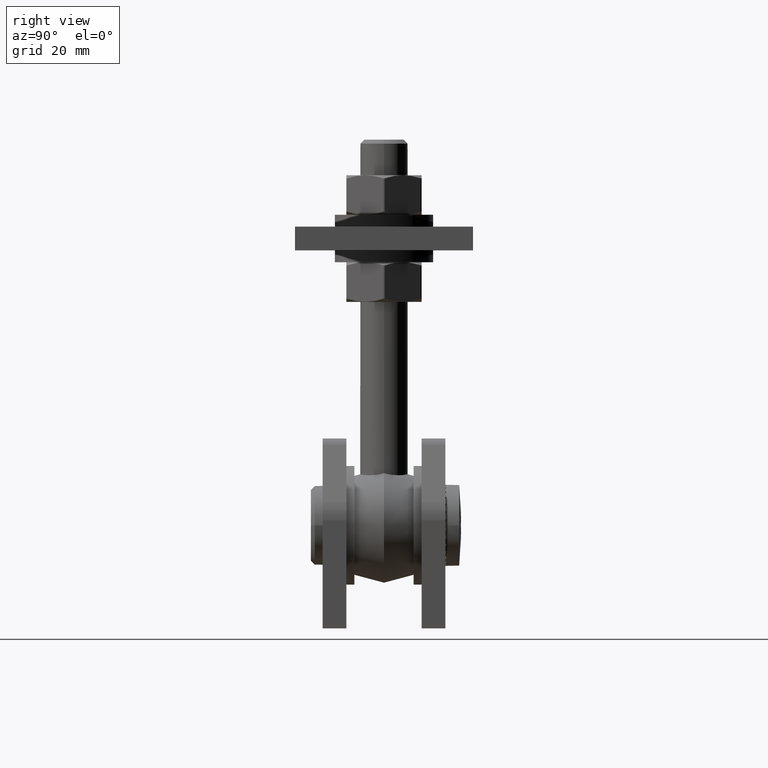
[diagram: clean part render]
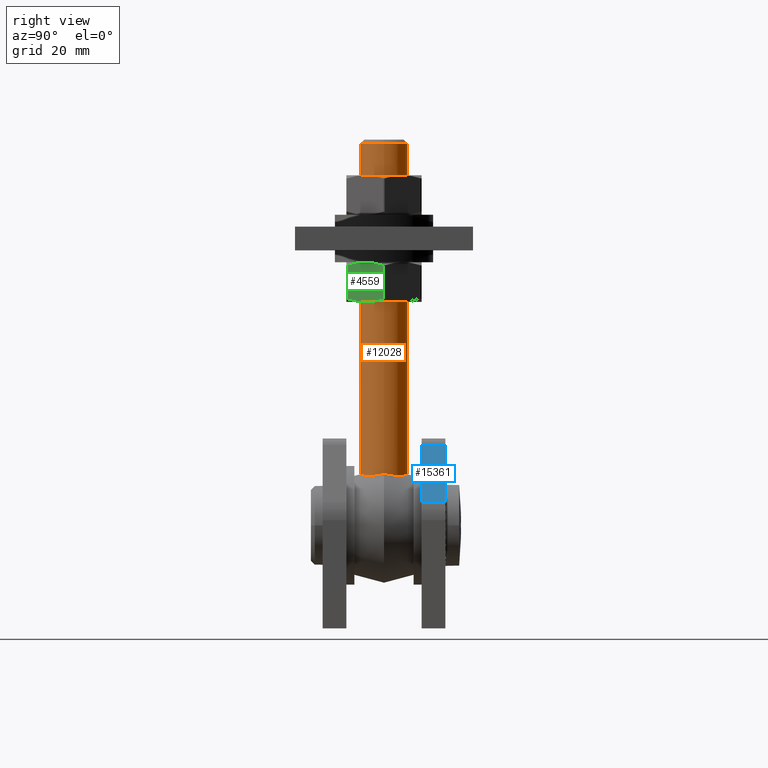
[diagram: same view with three faces highlighted in distinct colors, each labeled with its STEP entity id]
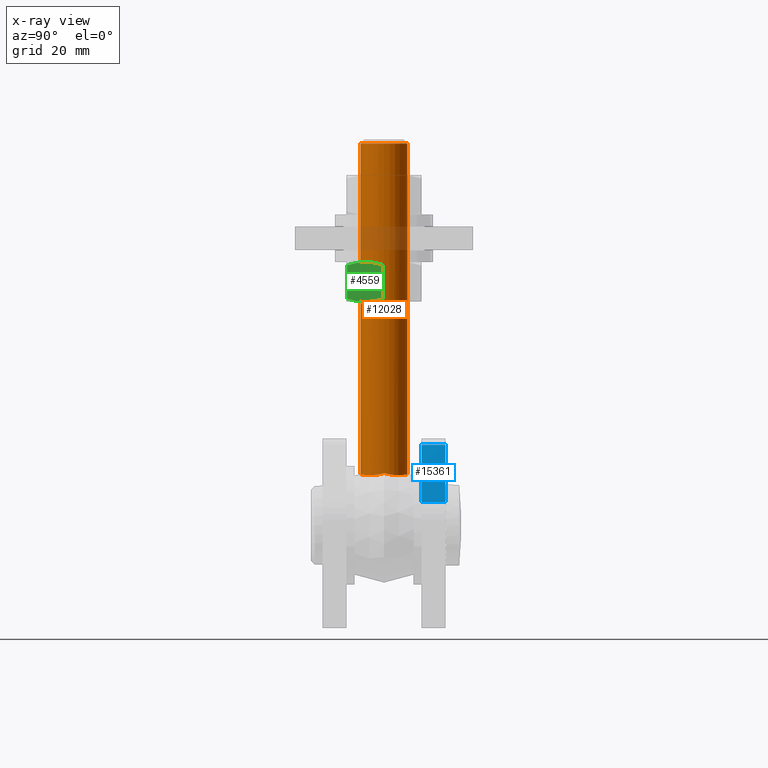
[diagram: x-ray of the same camera — body ghosted, the three highlighted faces saturated]
A machine part, right view with three faces highlighted in distinct colors.
The next image is the same camera in x-ray (body ghosted, the three faces saturated) — at least one of them is partly hidden behind the body in this view.
Their STEP definitions:

[orange] entity #12028 — the highlighted cylindrical surface (bore or boss wall) has radius 6 mm, axis along (0, 0, 1).
#327 = EDGE_LOOP ( 'NONE', ( #12473, #1795 ) ) ;
#779 = CARTESIAN_POINT ( 'NONE',  ( 6.000000000000002665, -0.3827541802042891961, 13.08826208833137095 ) ) ;
#852 = CARTESIAN_POINT ( 'NONE',  ( 0.7884352826538527648, -5.951249247761316141, 12.89040534083081013 ) ) ;
#1070 = CARTESIAN_POINT ( 'NONE',  ( -3.974814487299952237, -4.498876947203118704, 12.69334479588172648 ) ) ;
#1129 = CARTESIAN_POINT ( 'NONE',  ( 4.120193807994326995, 4.366084916060998466, 12.68396819487479910 ) ) ;
#1343 = VERTEX_POINT ( 'NONE', #9296 ) ;
#1795 = ORIENTED_EDGE ( 'NONE', *, *, #17881, .T. ) ;
#2503 = CARTESIAN_POINT ( 'NONE',  ( 5.397582578537481801, -2.627757068156821418, 12.70009026946609509 ) ) ;
#2577 = CARTESIAN_POINT ( 'NONE',  ( 5.110911634058252773, -3.149241585269620280, 12.66845421882813483 ) ) ;
#2915 = CARTESIAN_POINT ( 'NONE',  ( 3.017950531080384025, 5.200793096007117811, 12.76521835869265153 ) ) ;
#3001 = CARTESIAN_POINT ( 'NONE',  ( -3.980159266740700197, 4.507027438212402259, 12.69133912714833201 ) ) ;
#3070 = CARTESIAN_POINT ( 'NONE',  ( 1.561709717525819663, 5.806524821371747969, 12.86286706931056045 ) ) ;
#3141 = CARTESIAN_POINT ( 'NONE',  ( -2.123923953795481268, 5.614993702760308736, 12.82932117912651293 ) ) ;
#4165 = CARTESIAN_POINT ( 'NONE',  ( 3.980159266740700197, -4.507027438212403148, 12.69133912714833201 ) ) ;
#4307 = CARTESIAN_POINT ( 'NONE',  ( 1.558796039329187977, -5.797332074368805266, 12.86129482640286881 ) ) ;
#4382 = CARTESIAN_POINT ( 'NONE',  ( -1.561709717525822549, -5.806524821371746192, 12.86286706931056401 ) ) ;
#4572 = CARTESIAN_POINT ( 'NONE',  ( 1.945483584396603405, 5.689471076015696127, 12.84131577475108266 ) ) ;
#4645 = CARTESIAN_POINT ( 'NONE',  ( -1.368148691843816378, 5.845232313399372437, 12.87018697695522107 ) ) ;
#4716 = CARTESIAN_POINT ( 'NONE',  ( -5.702108158310748465, 1.907503466345394472, 12.77722720559683367 ) ) ;
#5298 = VERTEX_POINT ( 'NONE', #11848 ) ;
#5909 = CARTESIAN_POINT ( 'NONE',  ( 4.397321802568406213, 4.086839301262862989, 12.66942196451927494 ) ) ;
#5979 = CARTESIAN_POINT ( 'NONE',  ( 5.703965992027974607, 1.902295096582114153, 12.77792131987994217 ) ) ;
#6120 = CARTESIAN_POINT ( 'NONE',  ( 0.000000000000000000, 0.000000000000000000, 96.50000000000001421 ) ) ;
#6265 = DIRECTION ( 'NONE',  ( 1.000000000000000000, -1.643764948137485630E-48, 0.000000000000000000 ) ) ;
#6470 = CARTESIAN_POINT ( 'NONE',  ( -0.7884352826538547632, 5.951249247761316141, 12.89040534083081013 ) ) ;
#7325 = CARTESIAN_POINT ( 'NONE',  ( -5.703965992027976384, -1.902295096582111045, 12.77792131987994395 ) ) ;
#7599 = CARTESIAN_POINT ( 'NONE',  ( 6.000000000000000888, 1.848804821563645678E-15, 13.20037878244408347 ) ) ;
#7617 = CARTESIAN_POINT ( 'NONE',  ( -4.120193807994330548, -4.366084916060997578, 12.68396819487480265 ) ) ;
#7764 = CARTESIAN_POINT ( 'NONE',  ( -3.017950531080386689, -5.200793096007111593, 12.76521835869264798 ) ) ;
#7887 = CARTESIAN_POINT ( 'NONE',  ( 4.529070528400186646, 3.940385864936943427, 12.66425028738498426 ) ) ;
#8023 = CARTESIAN_POINT ( 'NONE',  ( -3.670653031151716483, 4.762439278341422444, 12.71469131393960872 ) ) ;
#8089 = CARTESIAN_POINT ( 'NONE',  ( -0.3954047058956922100, 5.990213094913122482, 12.89804642967532899 ) ) ;
#8954 = CARTESIAN_POINT ( 'NONE',  ( -6.000000000000002665, -0.3825724127659430596, 13.08831533181070839 ) ) ;
#9296 = CARTESIAN_POINT ( 'NONE',  ( 6.000000000000000888, 1.848804821563645678E-15, 13.20037878244408347 ) ) ;
#9384 = CARTESIAN_POINT ( 'NONE',  ( 2.672294666691055642, -5.386619551123978944, 12.79250781864620556 ) ) ;
#9461 = CARTESIAN_POINT ( 'NONE',  ( 5.480498776710037490, -2.449956099459378756, 12.71606002740366748 ) ) ;
#9532 = CARTESIAN_POINT ( 'NONE',  ( -5.224816275192858406, -2.976287832310414050, 12.67298624729080281 ) ) ;
#9661 = CARTESIAN_POINT ( 'NONE',  ( -5.814281017698808895, 1.531820667897725752, 12.83612793211212555 ) ) ;
#9729 = CARTESIAN_POINT ( 'NONE',  ( -4.534910008733427311, 3.948361094189677623, 12.66217952925253520 ) ) ;
#9827 = AXIS2_PLACEMENT_3D ( 'NONE', #6120, #12899, #12823 ) ;
#9882 = CARTESIAN_POINT ( 'NONE',  ( -5.397582578537477360, 2.627757068156823195, 12.70009026946609687 ) ) ;
#9961 = CARTESIAN_POINT ( 'NONE',  ( 0.3993178471957865017, 5.999826929037316070, 12.89996565414237573 ) ) ;
#10278 = EDGE_LOOP ( 'NONE', ( #15978 ) ) ;
#10670 = CARTESIAN_POINT ( 'NONE',  ( -5.963749772425885887, -0.7632868761129883994, 12.99321238859780614 ) ) ;
#10969 = CARTESIAN_POINT ( 'NONE',  ( 5.963733568600349422, -0.7656502035007102247, 12.99252877293548281 ) ) ;
#11086 = CARTESIAN_POINT ( 'NONE',  ( 5.224816275192856629, 2.976287832310417159, 12.67298624729080636 ) ) ;
#11103 = CARTESIAN_POINT ( 'NONE',  ( 3.017917842539742157, -5.200643561202084264, 12.76522316858578243 ) ) ;
#11175 = CARTESIAN_POINT ( 'NONE',  ( -3.510151101034216570, -4.870103469823735765, 12.72711780840207751 ) ) ;
#11233 = VERTEX_POINT ( 'NONE', #11933 ) ;
#11371 = CARTESIAN_POINT ( 'NONE',  ( 3.510151101034213461, 4.870103469823738429, 12.72711780840207574 ) ) ;
#11511 = CARTESIAN_POINT ( 'NONE',  ( -2.672294666691058751, 5.386619551123978944, 12.79250781864620912 ) ) ;
#11654 = CARTESIAN_POINT ( 'NONE',  ( -5.110911634058251884, 3.149241585269621169, 12.66845421882813305 ) ) ;
#11848 = CARTESIAN_POINT ( 'NONE',  ( 6.000000000000000888, -9.862589688824914388E-48, 96.50000000000001421 ) ) ;
#11933 = CARTESIAN_POINT ( 'NONE',  ( -6.000000000000000888, 1.734723475976807094E-15, 13.20037878244408347 ) ) ;
#12028 = ADVANCED_FACE ( 'NONE', ( #14936, #19734 ), #21324, .T. ) ;
#12473 = ORIENTED_EDGE ( 'NONE', *, *, #16956, .T. ) ;
#12685 = CARTESIAN_POINT ( 'NONE',  ( -4.529070528400189311, -3.940385864936939875, 12.66425028738498781 ) ) ;
#12823 = DIRECTION ( 'NONE',  ( 1.000000000000000000, -1.643764948137485630E-48, 0.000000000000000000 ) ) ;
#12899 = DIRECTION ( 'NONE',  ( -0.000000000000000000, -0.000000000000000000, -1.000000000000000000 ) ) ;
#12976 = CARTESIAN_POINT ( 'NONE',  ( 1.368148691843815712, -5.845232313399371549, 12.87018697695522285 ) ) ;
#13028 = CARTESIAN_POINT ( 'NONE',  ( 3.974814487299948684, 4.498876947203118704, 12.69334479588172648 ) ) ;
#14306 = CARTESIAN_POINT ( 'NONE',  ( -0.3993178471957874454, -5.999826929037315182, 12.89996565414237040 ) ) ;
#14360 = CARTESIAN_POINT ( 'NONE',  ( 3.670203712590957235, 4.750647187763872736, 12.71488632193073265 ) ) ;
#14381 = CARTESIAN_POINT ( 'NONE',  ( 6.000000000000000888, 1.848804821563645678E-15, 13.20037878244408347 ) ) ;
#14435 = CARTESIAN_POINT ( 'NONE',  ( 5.999999999999999112, 0.3825724127659466123, 13.08831533181070128 ) ) ;
#14457 = CARTESIAN_POINT ( 'NONE',  ( 5.213095216582326330, -2.977019174312771632, 12.67627985951546954 ) ) ;
#14510 = CARTESIAN_POINT ( 'NONE',  ( 4.778744625997416229, 3.633554790466055451, 12.65965581720103472 ) ) ;
#14531 = CARTESIAN_POINT ( 'NONE',  ( -1.945483584396608068, -5.689471076015698792, 12.84131577475108799 ) ) ;
#14604 = CARTESIAN_POINT ( 'NONE',  ( -4.897246985225756077, -3.472206871467635292, 12.66027516396318298 ) ) ;
#14804 = CARTESIAN_POINT ( 'NONE',  ( -6.000000000000000888, 1.734723475976807094E-15, 13.20037878244408347 ) ) ;
#14871 = CARTESIAN_POINT ( 'NONE',  ( -5.213095216582325442, 2.977019174312775629, 12.67627985951547132 ) ) ;
#14936 = FACE_OUTER_BOUND ( 'NONE', #10278, .T. ) ;
#14950 = CARTESIAN_POINT ( 'NONE',  ( -1.558796039329189309, 5.797332074368800825, 12.86129482640286170 ) ) ;
#15812 = CARTESIAN_POINT ( 'NONE',  ( -5.816834076654808783, -1.520973217391921928, 12.83814455263628318 ) ) ;
#15978 = ORIENTED_EDGE ( 'NONE', *, *, #19827, .T. ) ;
#16033 = CARTESIAN_POINT ( 'NONE',  ( 5.702108158310751129, -1.907503466345390697, 12.77722720559683545 ) ) ;
#16108 = CARTESIAN_POINT ( 'NONE',  ( 4.534910008733425535, -3.948361094189674514, 12.66217952925253343 ) ) ;
#16175 = CARTESIAN_POINT ( 'NONE',  ( 3.670653031151716927, -4.762439278341425108, 12.71469131393961405 ) ) ;
#16331 = CARTESIAN_POINT ( 'NONE',  ( 0.1957453901150722209, -6.000085684606625058, 12.90001700407307084 ) ) ;
#16334 = B_SPLINE_CURVE_WITH_KNOTS ( 'NONE', 3,
 ( #21086, #8954, #10670, #15812, #7325, #19465, #9532, #14604, #17981, #12685, #17831, #7617, #1070, #17907, #11175, #7764, #17759, #14531, #4382, #21234, #14306, #16331, #19542, #852, #21463, #12976, #4307, #21159, #19612, #9384, #11103, #16175, #4165, #16108, #19684, #2577, #14457, #2503, #9461, #16033, #21382, #10969, #779, #14381 ),
 .UNSPECIFIED., .F., .F.,
 ( 4, 2, 2, 2, 2, 2, 2, 2, 2, 2, 2, 2, 2, 2, 2, 2, 2, 2, 2, 2, 2, 4 ),
 ( 2.055989513974194360E-07, 0.001180053930874007785, 0.002359902262796617894, 0.003539750594719228653, 0.004129674760680534032, 0.004719598926641838110, 0.005309523092603140454, 0.005899447258564441063, 0.007079295590487041413, 0.008259143922409641764, 0.009438992254332241247, 0.01002891642029354359, 0.01061884058625484420, 0.01120876475221614307, 0.01179868891817744542, 0.01297853725010004490, 0.01415838558202264438, 0.01533823391394524560, 0.01592815807990654448, 0.01651808224586784682, 0.01769793057779044457, 0.01887777890971304232 ),
 .UNSPECIFIED. ) ;
#16385 = CARTESIAN_POINT ( 'NONE',  ( 5.407645434155393893, 2.628940001436006924, 12.69577194405658638 ) ) ;
#16956 = EDGE_CURVE ( 'NONE', #1343, #11233, #17908, .T. ) ;
#17759 = CARTESIAN_POINT ( 'NONE',  ( -2.672222296499891403, -5.386484521472672427, 12.79249709363265630 ) ) ;
#17831 = CARTESIAN_POINT ( 'NONE',  ( -4.397321802568409765, -4.086839301262861213, 12.66942196451927671 ) ) ;
#17881 = EDGE_CURVE ( 'NONE', #11233, #1343, #16334, .T. ) ;
#17907 = CARTESIAN_POINT ( 'NONE',  ( -3.670203712590958123, -4.750647187763870960, 12.71488632193072910 ) ) ;
#17908 = B_SPLINE_CURVE_WITH_KNOTS ( 'NONE', 3,
 ( #7599, #14435, #21285, #21438, #5979, #16385, #11086, #19662, #14510, #7887, #5909, #1129, #13028, #14360, #11371, #2915, #19872, #4572, #3070, #21587, #9961, #21803, #8089, #6470, #20097, #4645, #14950, #20168, #3141, #11511, #21878, #8023, #3001, #9729, #21667, #11654, #14871, #9882, #18469, #4716, #9661, #18180, #21732, #14804 ),
 .UNSPECIFIED., .F., .F.,
 ( 4, 2, 2, 2, 2, 2, 2, 2, 2, 2, 2, 2, 2, 2, 2, 2, 2, 2, 2, 2, 2, 4 ),
 ( 2.055989513968359891E-07, 0.001180053930874000413, 0.002359902262796604016, 0.003539750594719206968, 0.004129674760680508878, 0.004719598926641811222, 0.005309523092603110964, 0.005899447258564412440, 0.007079295590487012790, 0.008259143922409615743, 0.009438992254332216961, 0.01002891642029351583, 0.01061884058625481644, 0.01120876475221612052, 0.01179868891817742287, 0.01297853725010002408, 0.01415838558202262704, 0.01533823391394523172, 0.01592815807990653407, 0.01651808224586783641, 0.01769793057779044110, 0.01887777890971304232 ),
 .UNSPECIFIED. ) ;
#17981 = CARTESIAN_POINT ( 'NONE',  ( -4.778744625997418005, -3.633554790466051010, 12.65965581720103295 ) ) ;
#18180 = CARTESIAN_POINT ( 'NONE',  ( -5.963733568600349422, 0.7656502035007147766, 12.99252877293548281 ) ) ;
#18469 = CARTESIAN_POINT ( 'NONE',  ( -5.480498776710037490, 2.449956099459380976, 12.71606002740365859 ) ) ;
#19465 = CARTESIAN_POINT ( 'NONE',  ( -5.407645434155394781, -2.628940001436003371, 12.69577194405658993 ) ) ;
#19542 = CARTESIAN_POINT ( 'NONE',  ( 0.3954047058956901006, -5.990213094913119818, 12.89804642967532899 ) ) ;
#19600 = CIRCLE ( 'NONE', #9827, 6.000000000000000888 ) ;
#19612 = CARTESIAN_POINT ( 'NONE',  ( 2.123923953795479491, -5.614993702760309624, 12.82932117912651293 ) ) ;
#19662 = CARTESIAN_POINT ( 'NONE',  ( 4.897246985225751637, 3.472206871467637956, 12.66027516396319008 ) ) ;
#19669 = CARTESIAN_POINT ( 'NONE',  ( 0.000000000000000000, 0.000000000000000000, -14.50200000000000067 ) ) ;
#19684 = CARTESIAN_POINT ( 'NONE',  ( 4.783076354395745078, -3.644000790641277909, 12.65607650935470652 ) ) ;
#19734 = FACE_OUTER_BOUND ( 'NONE', #327, .T. ) ;
#19827 = EDGE_CURVE ( 'NONE', #5298, #5298, #19600, .T. ) ;
#19872 = CARTESIAN_POINT ( 'NONE',  ( 2.672222296499887406, 5.386484521472674203, 12.79249709363265275 ) ) ;
#19891 = AXIS2_PLACEMENT_3D ( 'NONE', #19669, #19953, #6265 ) ;
#19953 = DIRECTION ( 'NONE',  ( 0.000000000000000000, 0.000000000000000000, 1.000000000000000000 ) ) ;
#20097 = CARTESIAN_POINT ( 'NONE',  ( -0.9829682933150273305, 5.922190893152589730, 12.88474171911507149 ) ) ;
#20168 = CARTESIAN_POINT ( 'NONE',  ( -1.936177580107270257, 5.682439674208922042, 12.84089857158601866 ) ) ;
#21086 = CARTESIAN_POINT ( 'NONE',  ( -6.000000000000000888, 1.734723475976807094E-15, 13.20037878244408347 ) ) ;
#21159 = CARTESIAN_POINT ( 'NONE',  ( 1.936177580107269591, -5.682439674208924707, 12.84089857158602399 ) ) ;
#21234 = CARTESIAN_POINT ( 'NONE',  ( -0.7904110285022537541, -5.960697790447253119, 12.89202369021798233 ) ) ;
#21285 = CARTESIAN_POINT ( 'NONE',  ( 5.963749772425886775, 0.7632868761129916191, 12.99321238859780436 ) ) ;
#21324 = CYLINDRICAL_SURFACE ( 'NONE', #19891, 6.000000000000000888 ) ;
#21382 = CARTESIAN_POINT ( 'NONE',  ( 5.814281017698811560, -1.531820667897720645, 12.83612793211212733 ) ) ;
#21438 = CARTESIAN_POINT ( 'NONE',  ( 5.816834076654808783, 1.520973217391925481, 12.83814455263628318 ) ) ;
#21463 = CARTESIAN_POINT ( 'NONE',  ( 0.9829682933150251101, -5.922190893152589730, 12.88474171911507149 ) ) ;
#21587 = CARTESIAN_POINT ( 'NONE',  ( 0.7904110285022500904, 5.960697790447256672, 12.89202369021798589 ) ) ;
#21667 = CARTESIAN_POINT ( 'NONE',  ( -4.783076354395746854, 3.644000790641277021, 12.65607650935471007 ) ) ;
#21732 = CARTESIAN_POINT ( 'NONE',  ( -6.000000000000000888, 0.3827541802042939700, 13.08826208833137095 ) ) ;
#21803 = CARTESIAN_POINT ( 'NONE',  ( -0.1957453901150751907, 6.000085684606624170, 12.90001700407306906 ) ) ;
#21878 = CARTESIAN_POINT ( 'NONE',  ( -3.017917842539743045, 5.200643561202086929, 12.76522316858578598 ) ) ;

[blue] entity #15361 — the highlighted planar face has unit normal (-0.8888, 0, -0.4583).
#141 = LINE ( 'NONE', #9087, #18010 ) ;
#828 = ORIENTED_EDGE ( 'NONE', *, *, #7630, .T. ) ;
#937 = ORIENTED_EDGE ( 'NONE', *, *, #3558, .T. ) ;
#1157 = CARTESIAN_POINT ( 'NONE',  ( 13.93143460344952622, 3.000000000000000888, 22.37481871733221084 ) ) ;
#1564 = ORIENTED_EDGE ( 'NONE', *, *, #18745, .F. ) ;
#2221 = DIRECTION ( 'NONE',  ( -0.4582729057774030945, 0.000000000000000000, 0.8888115344831746256 ) ) ;
#3558 = EDGE_CURVE ( 'NONE', #8816, #18128, #12231, .T. ) ;
#3817 = DIRECTION ( 'NONE',  ( 0.4582729057774031500, -0.000000000000000000, -0.8888115344831746256 ) ) ;
#4210 = VECTOR ( 'NONE', #17604, 1000.000000000000114 ) ;
#6103 = VECTOR ( 'NONE', #3817, 1000.000000000000114 ) ;
#7630 = EDGE_CURVE ( 'NONE', #9596, #8816, #141, .T. ) ;
#7738 = ORIENTED_EDGE ( 'NONE', *, *, #18657, .F. ) ;
#8816 = VERTEX_POINT ( 'NONE', #20548 ) ;
#9087 = CARTESIAN_POINT ( 'NONE',  ( 13.93143460344952622, 3.000000000000000888, 22.37481871733221084 ) ) ;
#9211 = LINE ( 'NONE', #17384, #4210 ) ;
#9453 = DIRECTION ( 'NONE',  ( -0.000000000000000000, -1.000000000000000000, -0.000000000000000000 ) ) ;
#9596 = VERTEX_POINT ( 'NONE', #1157 ) ;
#11034 = CARTESIAN_POINT ( 'NONE',  ( 21.38811534483174626, 3.000000000000000888, 7.912729057774021690 ) ) ;
#11496 = FACE_OUTER_BOUND ( 'NONE', #22104, .T. ) ;
#11790 = AXIS2_PLACEMENT_3D ( 'NONE', #20420, #12243, #2221 ) ;
#12231 = LINE ( 'NONE', #19192, #6103 ) ;
#12243 = DIRECTION ( 'NONE',  ( -0.8888115344831746256, 0.000000000000000000, -0.4582729057774030945 ) ) ;
#14762 = CARTESIAN_POINT ( 'NONE',  ( 21.38811534483174626, 3.000000000000000888, 7.912729057774021690 ) ) ;
#15284 = PLANE ( 'NONE',  #11790 ) ;
#15361 = ADVANCED_FACE ( 'NONE', ( #11496 ), #15284, .F. ) ;
#16517 = VERTEX_POINT ( 'NONE', #14762 ) ;
#17384 = CARTESIAN_POINT ( 'NONE',  ( 21.38811534483174626, 3.000000000000000888, 7.912729057774021690 ) ) ;
#17604 = DIRECTION ( 'NONE',  ( 0.4582729057774031500, -0.000000000000000000, -0.8888115344831746256 ) ) ;
#18010 = VECTOR ( 'NONE', #19238, 1000.000000000000000 ) ;
#18128 = VERTEX_POINT ( 'NONE', #18979 ) ;
#18657 = EDGE_CURVE ( 'NONE', #9596, #16517, #9211, .T. ) ;
#18745 = EDGE_CURVE ( 'NONE', #16517, #18128, #20143, .T. ) ;
#18979 = CARTESIAN_POINT ( 'NONE',  ( 21.38811534483174626, -3.000000000000000888, 7.912729057774021690 ) ) ;
#19192 = CARTESIAN_POINT ( 'NONE',  ( 21.38811534483174626, -3.000000000000000888, 7.912729057774021690 ) ) ;
#19238 = DIRECTION ( 'NONE',  ( -0.000000000000000000, -1.000000000000000000, -0.000000000000000000 ) ) ;
#20143 = LINE ( 'NONE', #11034, #20684 ) ;
#20420 = CARTESIAN_POINT ( 'NONE',  ( 21.38811534483174626, 3.000000000000000888, 7.912729057774021690 ) ) ;
#20548 = CARTESIAN_POINT ( 'NONE',  ( 13.93143460344952622, -3.000000000000000888, 22.37481871733221084 ) ) ;
#20684 = VECTOR ( 'NONE', #9453, 1000.000000000000000 ) ;
#22104 = EDGE_LOOP ( 'NONE', ( #937, #1564, #7738, #828 ) ) ;

[green] entity #4559 — the highlighted planar face has unit normal (-0.866, 0.5, -0).
#132 = CARTESIAN_POINT ( 'NONE',  ( 6.481161992788997850, -4.661040693212955333, -7.774298136405125348 ) ) ;
#614 = CARTESIAN_POINT ( 'NONE',  ( 10.40005022359209619, -4.468805358379086989, -0.9865846114703982206 ) ) ;
#1182 = EDGE_CURVE ( 'NONE', #21156, #9264, #18981, .T. ) ;
#1542 = ORIENTED_EDGE ( 'NONE', *, *, #1182, .T. ) ;
#1764 = CARTESIAN_POINT ( 'NONE',  ( 5.629165124598358716, 4.233161112797506398, -9.250000000000722977 ) ) ;
#1853 = ORIENTED_EDGE ( 'NONE', *, *, #7428, .T. ) ;
#1918 = CARTESIAN_POINT ( 'NONE',  ( 6.054432448312299542, 4.468805358379099424, -8.513415388529494976 ) ) ;
#2081 = EDGE_LOOP ( 'NONE', ( #2742, #11644, #10925, #19254, #1542, #1853 ) ) ;
#2142 = FACE_OUTER_BOUND ( 'NONE', #2081, .T. ) ;
#2511 = CARTESIAN_POINT ( 'NONE',  ( 10.96965511460286358, 5.000000000000060396, -1.522173556453689203E-15 ) ) ;
#2731 = DIRECTION ( 'NONE',  ( -0.8660254037844363761, 0.000000000000000000, 0.5000000000000041078 ) ) ;
#2742 = ORIENTED_EDGE ( 'NONE', *, *, #3354, .T. ) ;
#2831 = CARTESIAN_POINT ( 'NONE',  ( 10.40106991011709248, 4.468240341392056614, -0.9848184626013087861 ) ) ;
#3064 = VERTEX_POINT ( 'NONE', #12060 ) ;
#3090 = EDGE_CURVE ( 'NONE', #6077, #21156, #19938, .T. ) ;
#3354 = EDGE_CURVE ( 'NONE', #9251, #3064, #18533, .T. ) ;
#3940 = CARTESIAN_POINT ( 'NONE',  ( 5.629165124598857872, 5.000000000000004441, -9.249999999999863221 ) ) ;
#4334 = EDGE_CURVE ( 'NONE', #3064, #19121, #12236, .T. ) ;
#4555 = CARTESIAN_POINT ( 'NONE',  ( 9.973320679115380116, 4.661040693212950003, -1.725701863594792052 ) ) ;
#4559 = ADVANCED_FACE ( 'NONE', ( #2142 ), #6067, .F. ) ;
#5139 = CARTESIAN_POINT ( 'NONE',  ( 8.227241335952161450, -5.000000000000004441, -4.749999999999932498 ) ) ;
#5311 = CARTESIAN_POINT ( 'NONE',  ( 8.007001594286110802, -5.000000000000010658, -5.131466422411452122 ) ) ;
#6067 = PLANE ( 'NONE',  #11622 ) ;
#6077 = VERTEX_POINT ( 'NONE', #5139 ) ;
#6106 = CARTESIAN_POINT ( 'NONE',  ( 10.82531754730597839, -4.233161112797478864, -0.2499999999991362187 ) ) ;
#6587 = CARTESIAN_POINT ( 'NONE',  ( 5.629165124598358716, 4.233161112797506398, -9.250000000000722977 ) ) ;
#6819 = B_SPLINE_CURVE_WITH_KNOTS ( 'NONE', 3,
 ( #12367, #614, #15795, #19524, #20857, #12434 ),
 .UNSPECIFIED., .F., .F.,
 ( 4, 2, 4 ),
 ( 0.0002975922718325331603, 0.002923788827799094110, 0.005549985383765655006 ),
 .UNSPECIFIED. ) ;
#6915 = CARTESIAN_POINT ( 'NONE',  ( 7.785726958241959039, -4.982053147081711764, -5.514725334466242579 ) ) ;
#6980 = VECTOR ( 'NONE', #19170, 1000.000000000000000 ) ;
#7428 = EDGE_CURVE ( 'NONE', #9264, #9251, #8533, .T. ) ;
#7657 = EDGE_CURVE ( 'NONE', #19121, #6077, #6819, .T. ) ;
#8533 = B_SPLINE_CURVE_WITH_KNOTS ( 'NONE', 3,
 ( #1764, #1918, #17296, #10277, #20709, #10353 ),
 .UNSPECIFIED., .F., .F.,
 ( 4, 2, 4 ),
 ( 0.0002975922718325389607, 0.002923788827799092809, 0.005549985383765647200 ),
 .UNSPECIFIED. ) ;
#9251 = VERTEX_POINT ( 'NONE', #20600 ) ;
#9264 = VERTEX_POINT ( 'NONE', #6587 ) ;
#9276 = CARTESIAN_POINT ( 'NONE',  ( 8.227241335952136581, 5.000000000000004441, -4.749999999999932498 ) ) ;
#9286 = VECTOR ( 'NONE', #16753, 1000.000000000000000 ) ;
#9424 = CARTESIAN_POINT ( 'NONE',  ( 8.668755713662420703, 4.982053147081710875, -3.985274665533676153 ) ) ;
#10036 = CARTESIAN_POINT ( 'NONE',  ( 10.82531754730545792, 5.000000000000060396, -0.2499999999999974465 ) ) ;
#10277 = CARTESIAN_POINT ( 'NONE',  ( 7.348052271291399151, 4.927662757294324791, -6.272800129451419515 ) ) ;
#10353 = CARTESIAN_POINT ( 'NONE',  ( 8.227241335952136581, 5.000000000000004441, -4.749999999999932498 ) ) ;
#10490 = CARTESIAN_POINT ( 'NONE',  ( 7.130196065325894672, -4.860768812073048117, -6.650138146927863758 ) ) ;
#10925 = ORIENTED_EDGE ( 'NONE', *, *, #7657, .T. ) ;
#11622 = AXIS2_PLACEMENT_3D ( 'NONE', #2511, #2731, #19763 ) ;
#11644 = ORIENTED_EDGE ( 'NONE', *, *, #4334, .T. ) ;
#12060 = CARTESIAN_POINT ( 'NONE',  ( 10.82531754730545792, 4.233161112797811931, -0.2499999999999969191 ) ) ;
#12236 = LINE ( 'NONE', #10036, #9286 ) ;
#12367 = CARTESIAN_POINT ( 'NONE',  ( 10.82531754730597839, -4.233161112797478864, -0.2499999999991362187 ) ) ;
#12434 = CARTESIAN_POINT ( 'NONE',  ( 8.227241335952161450, -5.000000000000004441, -4.749999999999932498 ) ) ;
#12873 = CARTESIAN_POINT ( 'NONE',  ( 9.106704621436129798, 4.912405536657730387, -3.226724906150305383 ) ) ;
#13686 = CARTESIAN_POINT ( 'NONE',  ( 5.629165124598856984, -4.233161112797755976, -9.249999999999863221 ) ) ;
#13831 = CARTESIAN_POINT ( 'NONE',  ( 8.227241335952161450, -5.000000000000004441, -4.749999999999932498 ) ) ;
#14420 = CARTESIAN_POINT ( 'NONE',  ( 10.82531754730545792, 4.233161112797811931, -0.2499999999999969191 ) ) ;
#15474 = CARTESIAN_POINT ( 'NONE',  ( 6.053412761787289931, -4.468240341392061943, -8.515181537398609279 ) ) ;
#15795 = CARTESIAN_POINT ( 'NONE',  ( 9.971711193546216379, -4.661682687220368493, -1.728489574374634241 ) ) ;
#16753 = DIRECTION ( 'NONE',  ( 0.000000000000000000, -1.000000000000000000, -2.582873329443502825E-41 ) ) ;
#17203 = CARTESIAN_POINT ( 'NONE',  ( 5.629165124598856984, -4.233161112797755976, -9.249999999999863221 ) ) ;
#17296 = CARTESIAN_POINT ( 'NONE',  ( 6.482771478358174022, 4.661682687220380039, -7.771510425625263174 ) ) ;
#17791 = CARTESIAN_POINT ( 'NONE',  ( 8.447481077618267165, 5.000000000000010658, -4.368533577588460837 ) ) ;
#18533 = B_SPLINE_CURVE_WITH_KNOTS ( 'NONE', 3,
 ( #9276, #17791, #9424, #12873, #19717, #4555, #2831, #14420 ),
 .UNSPECIFIED., .F., .F.,
 ( 4, 2, 2, 4 ),
 ( 0.005549985383765647200, 0.006857997360578053751, 0.008166009337390461170, 0.01078203329101527774 ),
 .UNSPECIFIED. ) ;
#18981 = LINE ( 'NONE', #3940, #6980 ) ;
#19121 = VERTEX_POINT ( 'NONE', #6106 ) ;
#19170 = DIRECTION ( 'NONE',  ( -0.000000000000000000, 1.000000000000000000, 2.582873329443502825E-41 ) ) ;
#19254 = ORIENTED_EDGE ( 'NONE', *, *, #3090, .T. ) ;
#19524 = CARTESIAN_POINT ( 'NONE',  ( 9.106430400612987697, -4.927662757294321239, -3.227199870548484562 ) ) ;
#19717 = CARTESIAN_POINT ( 'NONE',  ( 9.324286606578482406, 4.860768812073047229, -2.849861853072054974 ) ) ;
#19763 = DIRECTION ( 'NONE',  ( 0.5000000000000041078, 0.000000000000000000, 0.8660254037844363761 ) ) ;
#19938 = B_SPLINE_CURVE_WITH_KNOTS ( 'NONE', 3,
 ( #13831, #5311, #6915, #20467, #10490, #132, #15474, #17203 ),
 .UNSPECIFIED., .F., .F.,
 ( 4, 2, 2, 4 ),
 ( 0.005549985383765655006, 0.006857997360578058088, 0.008166009337390461170, 0.01078203329101527080 ),
 .UNSPECIFIED. ) ;
#20467 = CARTESIAN_POINT ( 'NONE',  ( 7.347778050468244615, -4.912405536657732164, -6.273275093849611572 ) ) ;
#20600 = CARTESIAN_POINT ( 'NONE',  ( 8.227241335952136581, 5.000000000000004441, -4.749999999999932498 ) ) ;
#20709 = CARTESIAN_POINT ( 'NONE',  ( 7.785049015618882962, 5.000000000000011546, -5.515899565534023274 ) ) ;
#20857 = CARTESIAN_POINT ( 'NONE',  ( 8.669433656285502110, -5.000000000000007994, -3.984100434465885243 ) ) ;
#21156 = VERTEX_POINT ( 'NONE', #13686 ) ;